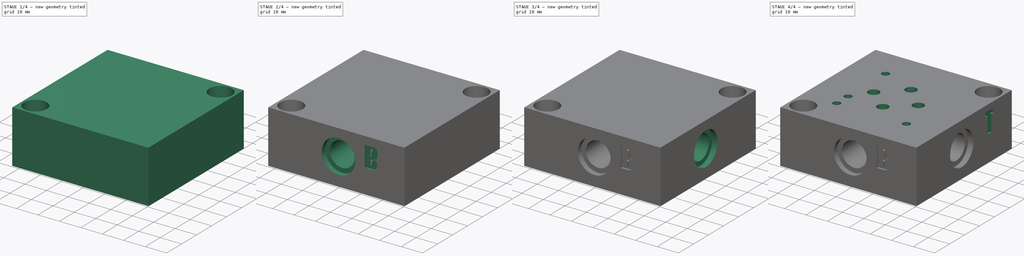
[diagram: build sequence overview — one tinted view per stage of 4, left to right]
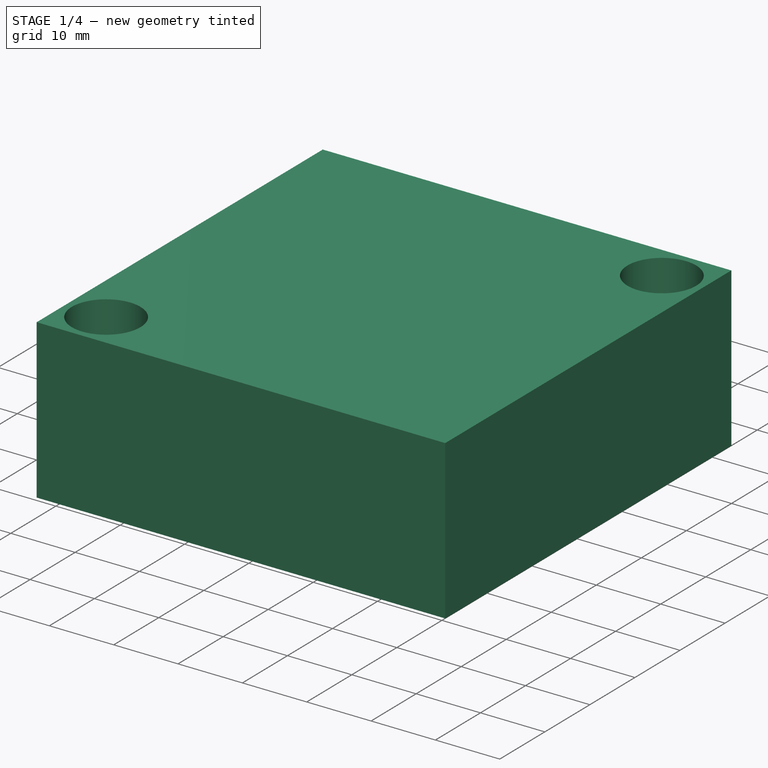
[diagram: stage 1 of 4 — iso view after this stage's code; geometry added in this stage tinted green]
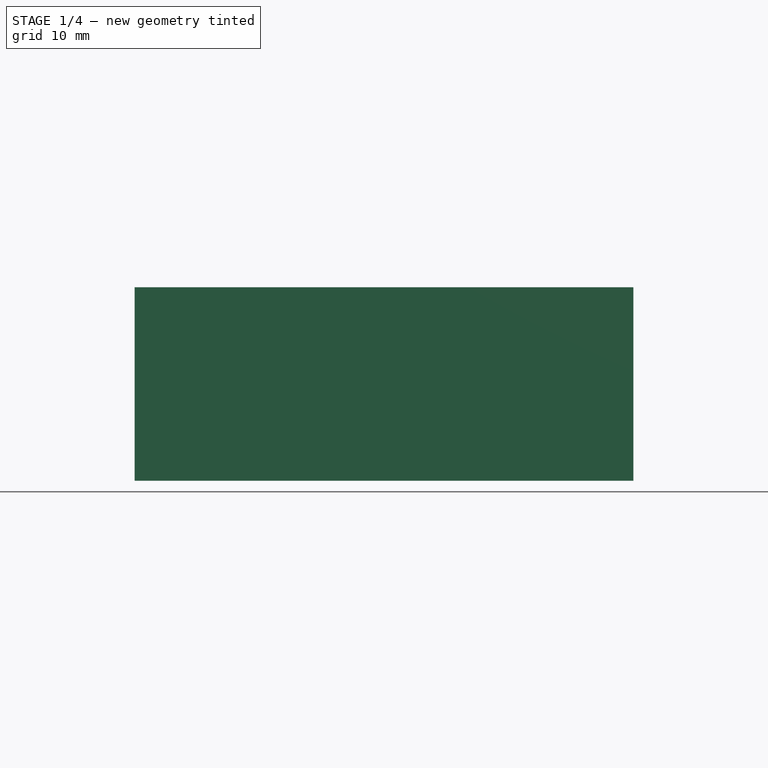
[diagram: stage 1 of 4 — front view after this stage's code; geometry added in this stage tinted green]
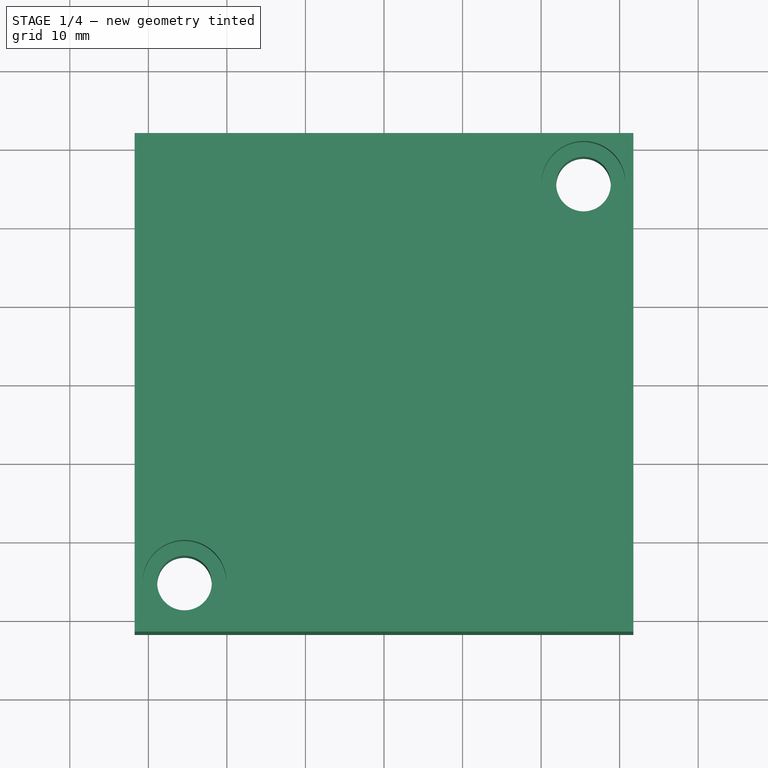
[diagram: stage 1 of 4 — top view after this stage's code; geometry added in this stage tinted green]
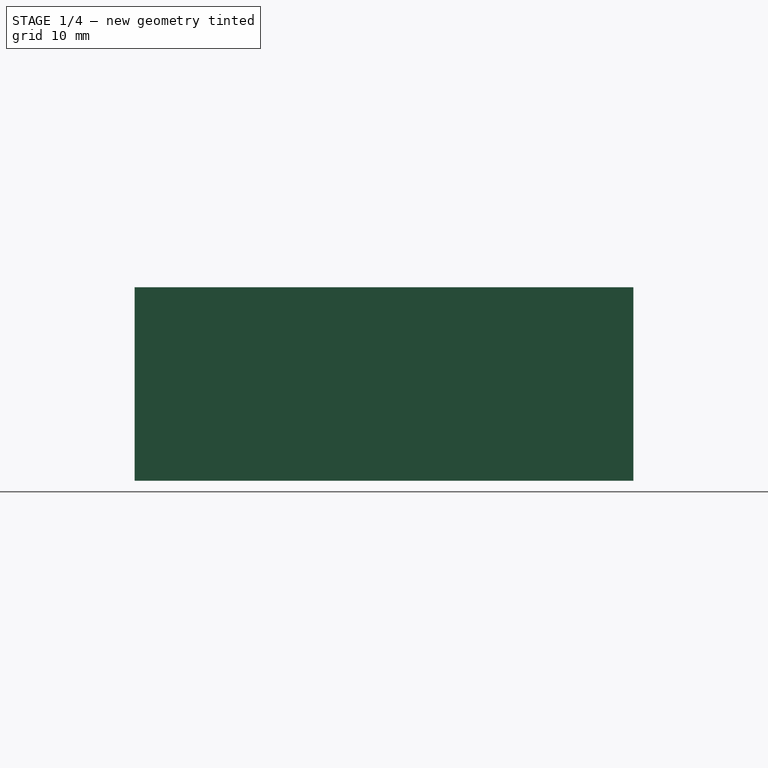
[diagram: stage 1 of 4 — right view after this stage's code; geometry added in this stage tinted green]
FCSTD DOCUMENT  (FreeCAD 0.18R16117 (Git))
Label: D03 Subplate Surplus Center
License: CreativeCommons Attribution-ShareAlike
LicenseURL: http://creativecommons.org/licenses/by-sa/4.0/
objects: Sketcher::SketchObject×10, PartDesign::Hole×5, PartDesign::Pocket×4, PartDesign::Mirrored×2, PartDesign::Pad×1, PartDesign::Body×1
note: 33 computed .brp shape members not serialized (recipe doc carries the construction recipe); baked Part::Feature solids carry a one-line shape summary decoded from their .brp

FEATURE [Sketcher::SketchObject] Sketch
  MapMode = 5
  Support = -> [XY_Plane]
  sketch-geometry (5):
    g0: LineSegment StartX=31.75 StartY=31.75 StartZ=0 EndX=-31.75 EndY=31.75 EndZ=0
    g1: LineSegment StartX=-31.75 StartY=31.75 StartZ=0 EndX=-31.75 EndY=-31.75 EndZ=0
    g2: LineSegment StartX=-31.75 StartY=-31.75 StartZ=0 EndX=31.75 EndY=-31.75 EndZ=0
    g3: LineSegment StartX=31.75 StartY=-31.75 StartZ=0 EndX=31.75 EndY=31.75 EndZ=0
    g4: Circle [constr] CenterX=0 CenterY=0 CenterZ=0 NormalX=0 NormalY=0 NormalZ=1 AngleXU=0 Radius=44.9013
  constraints (14):
    c: Coincident(g0,g1)
    c: Coincident(g1,g2)
    c: Coincident(g2,g3)
    c: Coincident(g3,g0)
    c: Equal(g0,g1)
    c: Equal(g0,g2)
    c: Equal(g0,g3)
    c: PointOnObject(g0,g4)
    c: PointOnObject(g1,g4)
    c: PointOnObject(g2,g4)
    c: PointOnObject(g3,g4)
    c: Coincident(g4,g-1)
    c: DistanceY(g1,g1) = 63.5
    c: Horizontal(g0)
FEATURE [PartDesign::Pad] Pad
  Length = 24.638
  Length2 = 99.9998
  Profile = -> Sketch
  Type = 0
FEATURE [Sketcher::SketchObject] Sketch001
  MapMode = 5
  Placement = pos=(0,0,24.638) rot=(0,0,1;0rad)
  Support = -> [Pad]
  sketch-geometry (4):
    g0: GeomPoint X=25.4 Y=25.4 Z=0
    g1: GeomPoint X=-25.4 Y=-25.4 Z=0
    g2: Circle CenterX=-25.4 CenterY=-25.4 CenterZ=0 NormalX=0 NormalY=0 NormalZ=1 AngleXU=0 Radius=3.175
    g3: Circle CenterX=25.4 CenterY=25.4 CenterZ=0 NormalX=0 NormalY=0 NormalZ=1 AngleXU=0 Radius=3.175
  constraints (8):
    c: DistanceY(g1,g0) = 50.8
    c: DistanceX(g0) = 25.4
    c: DistanceX(g1) = -25.4
    c: DistanceY(g0) = 25.4
    c: Coincident(g2,g1)
    c: Coincident(g3,g0)
    c: Equal(g3,g2)
    c: Radius(g3) = 3.175
FEATURE [PartDesign::Hole] Hole  label="Mounting Screw C'Bore"
  BaseFeature = -> Pad
  Depth = 25
  DepthType = 1
  Diameter = 6.95
  DrillPoint = 1
  DrillPointAngle = 118
  HoleCutCountersinkAngle = 82
  HoleCutDepth = 8.89
  HoleCutDiameter = 10.668
  HoleCutType = 1
  ModelActualThread = false
  Profile = -> Sketch001
  Tapered = false
  TaperedAngle = 90
  ThreadAngle = 0
  ThreadClass = 1
  ThreadCutOffInner = 0
  ThreadCutOffOuter = 0
  ThreadDirection = 0
  ThreadFit = 0
  ThreadPitch = 0
  ThreadSize = 9
  ThreadType = 3
  Threaded = false
FEATURE [Sketcher::SketchObject] Sketch002
  ExternalGeometry = -> [Hole]
  MapMode = 5
  Placement = pos=(0,31.75,0) rot=(0,0.707107,0.707107;3.14159rad)
  Support = -> [Hole]
  sketch-geometry (1):
    g0: Circle CenterX=-1.016 CenterY=12.7 CenterZ=0 NormalX=0 NormalY=0 NormalZ=1 AngleXU=0 Radius=7.14375
  constraints (3):
    c: DistanceX(g0,g-3) = 32.766
    c: DistanceY(g0) = 12.7
    c: Diameter(g0) = 14.2875
FEATURE [PartDesign::Hole] Hole001  label="Port A"
  BaseFeature = -> Hole
  Depth = 25.0012
  DepthType = 0
  Diameter = 11.43
  DrillPoint = 1
  DrillPointAngle = 118
  HoleCutCountersinkAngle = 82
  HoleCutDepth = 2.5
  HoleCutDiameter = 15.6
  HoleCutType = 1
  ModelActualThread = false
  Profile = -> Sketch002
  Tapered = false
  TaperedAngle = 90
  ThreadAngle = 60
  ThreadClass = 0
  ThreadCutOffInner = 0.137482
  ThreadCutOffOuter = 0.274963
  ThreadDirection = 1
  ThreadFit = 0
  ThreadPitch = 1.27
  ThreadSize = 14
  ThreadType = 4
  Threaded = true
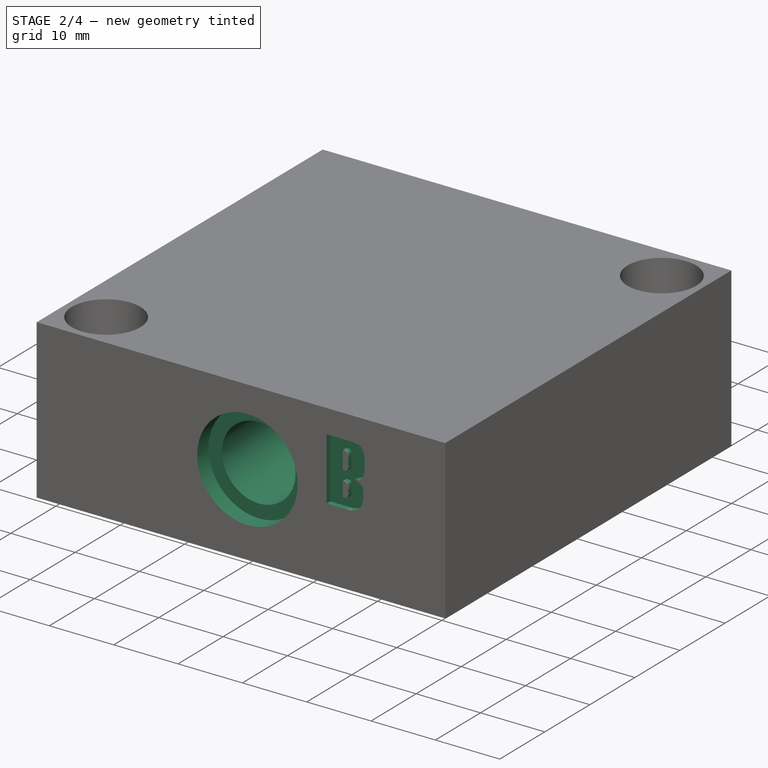
[diagram: stage 2 of 4 — iso view after this stage's code; geometry added in this stage tinted green]
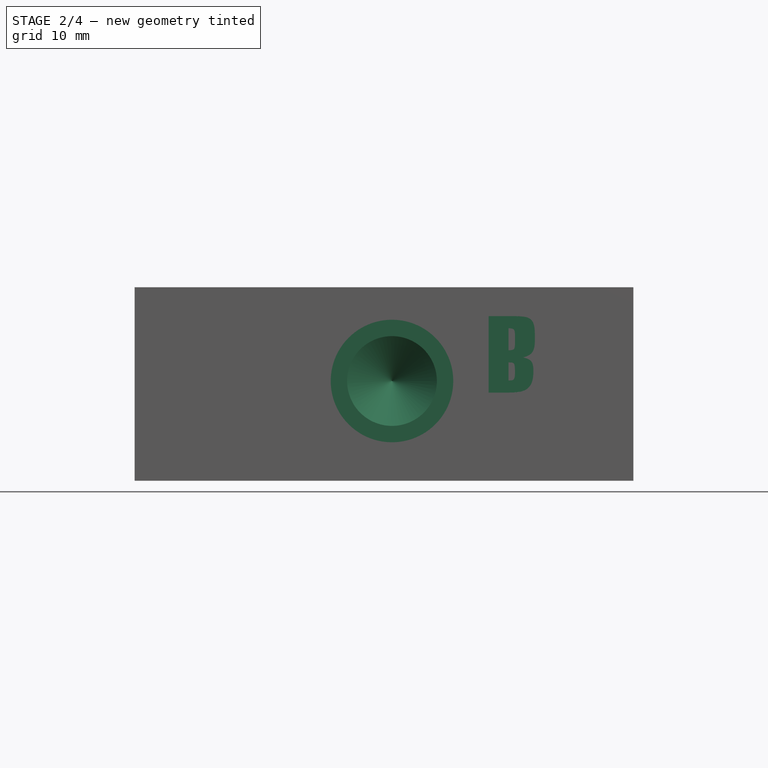
[diagram: stage 2 of 4 — front view after this stage's code; geometry added in this stage tinted green]
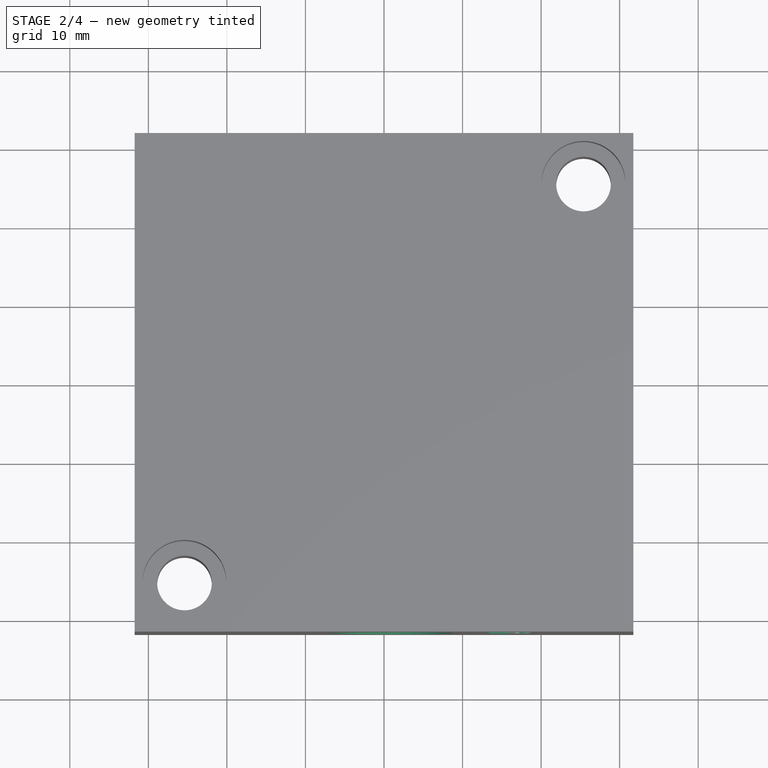
[diagram: stage 2 of 4 — top view after this stage's code; geometry added in this stage tinted green]
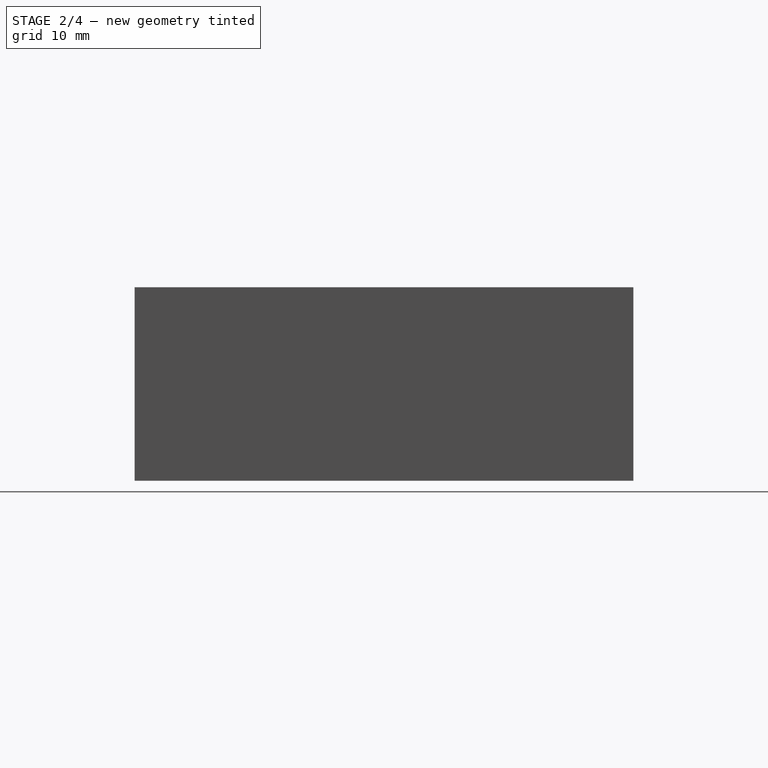
[diagram: stage 2 of 4 — right view after this stage's code; geometry added in this stage tinted green]
FEATURE [Sketcher::SketchObject] Sketch003
  MapMode = 5
  Placement = pos=(0,31.75,0) rot=(0,0.707107,0.707107;3.14159rad)
  Support = -> [Hole001]
  sketch-geometry (11):
    g0: LineSegment StartX=21.5374 StartY=21.7335 StartZ=0 EndX=22.9825 EndY=11.9978 EndZ=0
    g1: LineSegment StartX=17.8785 StartY=21.7335 StartZ=0 EndX=21.5374 EndY=21.7335 EndZ=0
    g2: LineSegment StartX=16.5934 StartY=11.9978 StartZ=0 EndX=17.8785 EndY=21.7335 EndZ=0
    g3: LineSegment StartX=19.2115 StartY=11.9978 StartZ=0 EndX=16.5934 EndY=11.9978 EndZ=0
    g4: LineSegment StartX=19.3636 StartY=13.7912 StartZ=0 EndX=19.2115 EndY=11.9978 EndZ=0
    g5: LineSegment StartX=20.2684 StartY=13.7912 StartZ=0 EndX=19.3636 EndY=13.7912 EndZ=0
    g6: LineSegment StartX=20.3965 StartY=11.9978 StartZ=0 EndX=20.2684 EndY=13.7912 EndZ=0
    g7: LineSegment StartX=22.9825 StartY=11.9978 StartZ=0 EndX=20.3965 EndY=11.9978 EndZ=0
    g8: BSplineCurve PolesCount=3 KnotsCount=2 Degree=2 IsPeriodic=0
    g9: LineSegment StartX=19.3316 StartY=15.5846 StartZ=0 EndX=20.1963 EndY=15.5846 EndZ=0
    g10: BSplineCurve PolesCount=3 KnotsCount=2 Degree=2 IsPeriodic=0
  constraints (16):
    c: Coincident(g0,g1)
    c: Horizontal(g1)
    c: Coincident(g1,g2)
    c: Coincident(g2,g3)
    c: Horizontal(g3)
    c: Coincident(g3,g4)
    c: Coincident(g4,g5)
    c: Horizontal(g5)
    c: Coincident(g5,g6)
    c: Coincident(g6,g7)
    c: Horizontal(g7)
    c: Coincident(g7,g0)
    c: Coincident(g8,g9)
    c: Horizontal(g9)
    c: Coincident(g9,g10)
    c: Coincident(g10,g8)
FEATURE [PartDesign::Pocket] Pocket  label="A"
  BaseFeature = -> Hole001
  Length = 0.79375
  Length2 = 99.9998
  Profile = -> Sketch003
  Type = 0
FEATURE [PartDesign::Mirrored] Mirrored  label="Port B"
  BaseFeature = -> Pocket
  MirrorPlane = -> XZ_Plane
  Originals = -> [Hole001]
FEATURE [Sketcher::SketchObject] Sketch004
  MapMode = 5
  Placement = pos=(-1.8e-15,-31.75,0) rot=(1,0,0;1.5708rad)
  Support = -> [Mirrored]
  sketch-geometry (27):
    g0: LineSegment StartX=13.3187 StartY=11.2257 StartZ=0 EndX=15.8407 EndY=11.2257 EndZ=0
    g1: LineSegment StartX=13.3187 StartY=20.9615 StartZ=0 EndX=13.3187 EndY=11.2257 EndZ=0
    g2: LineSegment StartX=16.2451 StartY=20.9615 StartZ=0 EndX=13.3187 EndY=20.9615 EndZ=0
    g3: BSplineCurve PolesCount=3 KnotsCount=2 Degree=2 IsPeriodic=0
    g4: BSplineCurve PolesCount=3 KnotsCount=2 Degree=2 IsPeriodic=0
    g5: BSplineCurve PolesCount=3 KnotsCount=2 Degree=2 IsPeriodic=0
    g6: LineSegment StartX=19.2034 StartY=17.7749 StartZ=0 EndX=19.2034 EndY=18.6797 EndZ=0
    g7: BSplineCurve PolesCount=3 KnotsCount=2 Degree=2 IsPeriodic=0
    g8: BSplineCurve PolesCount=3 KnotsCount=2 Degree=2 IsPeriodic=0
    g9: BSplineCurve PolesCount=3 KnotsCount=2 Degree=2 IsPeriodic=0
    g10: BSplineCurve PolesCount=3 KnotsCount=2 Degree=2 IsPeriodic=0
    g11: BSplineCurve PolesCount=3 KnotsCount=2 Degree=2 IsPeriodic=0
    g12: BSplineCurve PolesCount=3 KnotsCount=2 Degree=2 IsPeriodic=0
    g13: BSplineCurve PolesCount=3 KnotsCount=2 Degree=2 IsPeriodic=0
    g14: LineSegment StartX=15.8488 StartY=16.606 StartZ=0 EndX=15.8488 EndY=19.4243 EndZ=0
    g15: BSplineCurve PolesCount=3 KnotsCount=2 Degree=2 IsPeriodic=0
    g16: BSplineCurve PolesCount=3 KnotsCount=2 Degree=2 IsPeriodic=0
    g17: LineSegment StartX=16.6774 StartY=18.4835 StartZ=0 EndX=16.6774 EndY=17.5468 EndZ=0
    g18: BSplineCurve PolesCount=3 KnotsCount=2 Degree=2 IsPeriodic=0
    g19: BSplineCurve PolesCount=3 KnotsCount=2 Degree=2 IsPeriodic=0
    g20: LineSegment StartX=15.8488 StartY=12.7629 StartZ=0 EndX=15.8488 EndY=15.0688 EndZ=0
    g21: BSplineCurve PolesCount=3 KnotsCount=2 Degree=2 IsPeriodic=0
    g22: BSplineCurve PolesCount=3 KnotsCount=2 Degree=2 IsPeriodic=0
    g23: BSplineCurve PolesCount=3 KnotsCount=2 Degree=2 IsPeriodic=0
    g24: BSplineCurve PolesCount=3 KnotsCount=2 Degree=2 IsPeriodic=0
    g25: BSplineCurve PolesCount=3 KnotsCount=2 Degree=2 IsPeriodic=0
    g26: BSplineCurve PolesCount=3 KnotsCount=2 Degree=2 IsPeriodic=0
  constraints (34):
    c: Horizontal(g0)
    c: Coincident(g0,g1)
    c: Vertical(g1)
    c: Coincident(g1,g2)
    c: Horizontal(g2)
    c: Coincident(g2,g3)
    c: Coincident(g3,g4)
    c: Coincident(g4,g5)
    c: Coincident(g5,g6)
    c: Vertical(g6)
    c: Coincident(g6,g7)
    c: Coincident(g7,g8)
    c: Coincident(g8,g9)
    c: Coincident(g9,g10)
    c: Coincident(g10,g11)
    c: Coincident(g11,g12)
    c: Coincident(g12,g13)
    c: Coincident(g13,g0)
    c: Vertical(g14)
    c: Coincident(g14,g15)
    c: Coincident(g15,g16)
    c: Coincident(g16,g17)
    c: Vertical(g17)
    c: Coincident(g17,g18)
    c: Coincident(g18,g19)
    c: Coincident(g19,g14)
    c: Vertical(g20)
    c: Coincident(g20,g21)
    c: Coincident(g21,g22)
    c: Coincident(g22,g23)
    c: Coincident(g23,g24)
    c: Coincident(g24,g25)
    c: Coincident(g25,g26)
    c: Coincident(g26,g20)
FEATURE [PartDesign::Pocket] Pocket001  label="B"
  BaseFeature = -> Mirrored
  Length = 0.79375
  Length2 = 99.9998
  Profile = -> Sketch004
  Type = 0
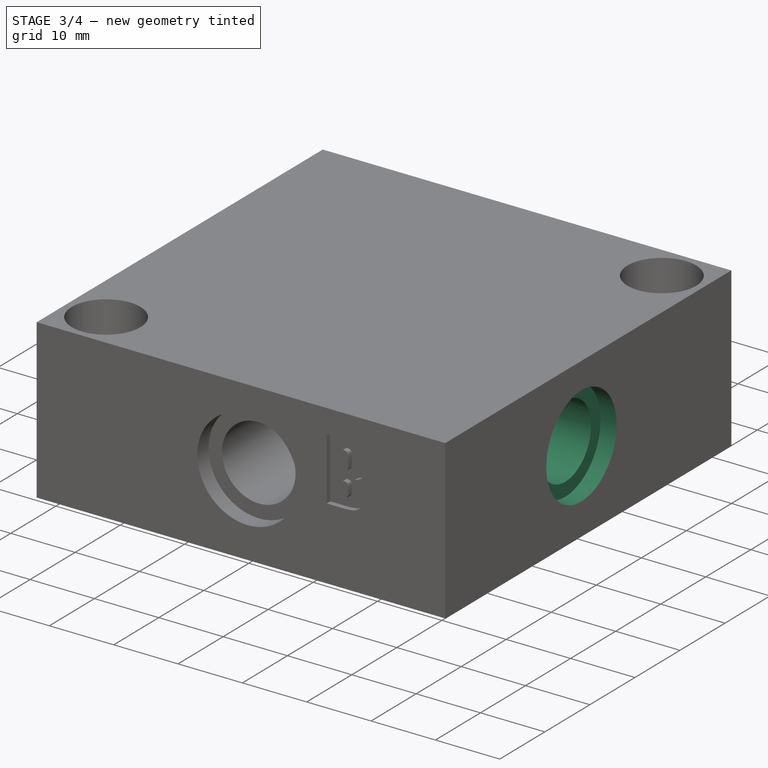
[diagram: stage 3 of 4 — iso view after this stage's code; geometry added in this stage tinted green]
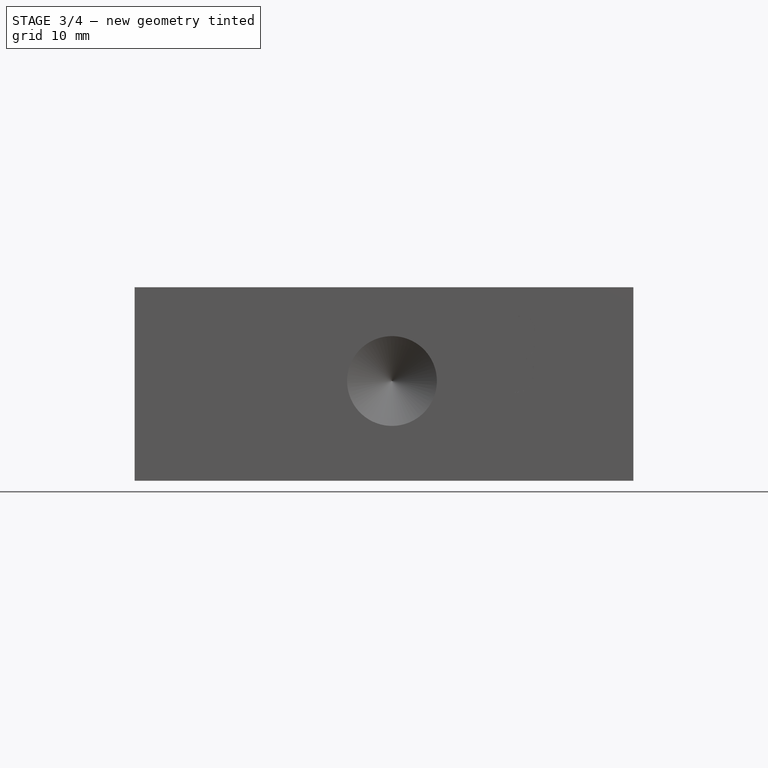
[diagram: stage 3 of 4 — front view after this stage's code; geometry added in this stage tinted green]
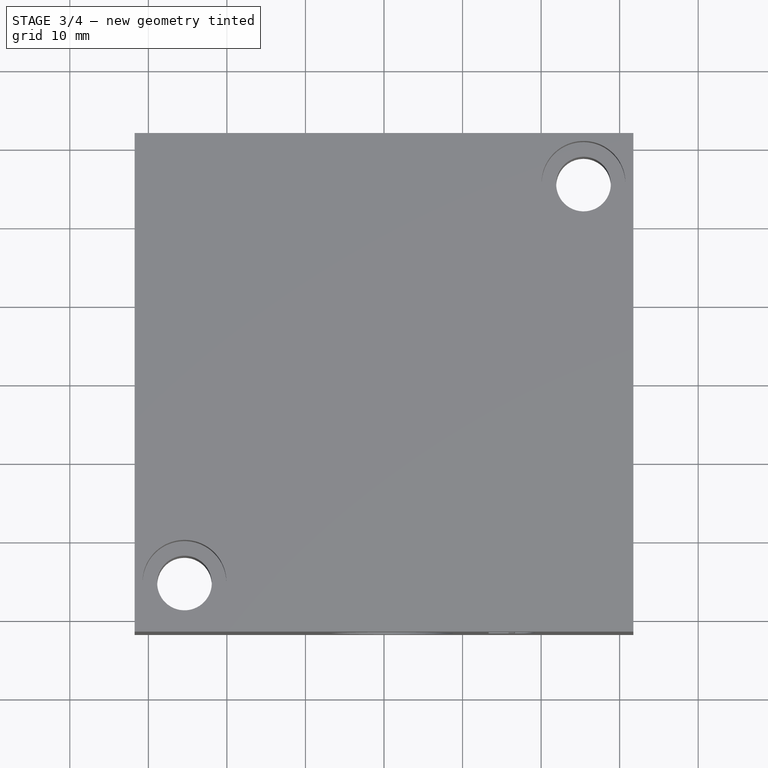
[diagram: stage 3 of 4 — top view after this stage's code; geometry added in this stage tinted green]
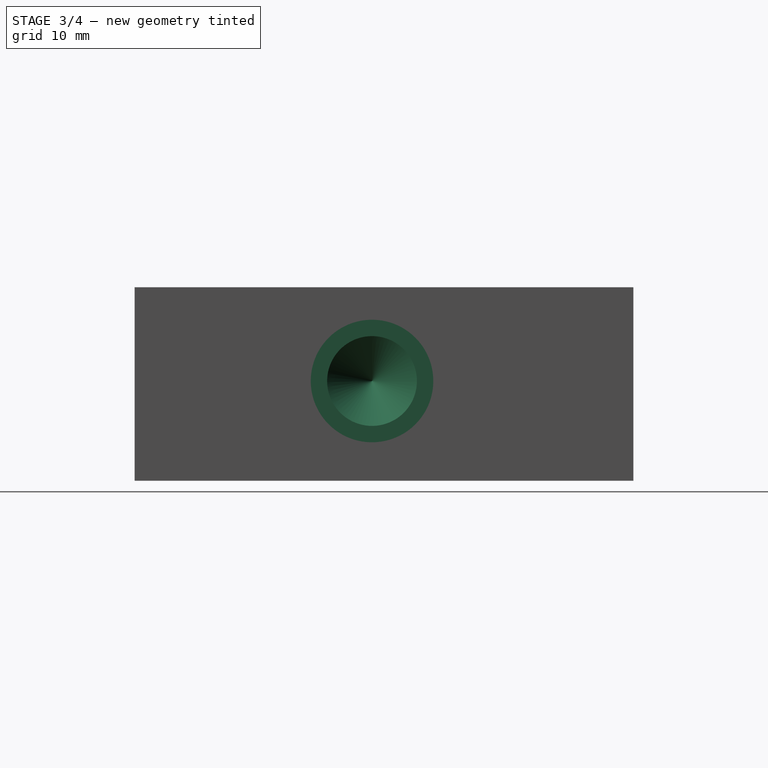
[diagram: stage 3 of 4 — right view after this stage's code; geometry added in this stage tinted green]
FEATURE [Sketcher::SketchObject] Sketch005
  ExternalGeometry = -> [Pocket001]
  MapMode = 5
  Placement = pos=(-31.75,1.8e-15,0) rot=(-0.57735,0.57735,0.57735;4.18879rad)
  Support = -> [Pocket001]
  sketch-geometry (1):
    g0: Circle CenterX=1.524 CenterY=12.7 CenterZ=0 NormalX=0 NormalY=0 NormalZ=1 AngleXU=0 Radius=7.14375
  constraints (3):
    c: DistanceX(g-3,g0) = 33.274
    c: DistanceY(g-1,g0) = 12.7
    c: Diameter(g0) = 14.2875
FEATURE [PartDesign::Hole] Hole002  label="Port P"
  BaseFeature = -> Pocket001
  Depth = 25.0012
  DepthType = 0
  Diameter = 11.43
  DrillPoint = 1
  DrillPointAngle = 118
  HoleCutCountersinkAngle = 82
  HoleCutDepth = 2.5
  HoleCutDiameter = 15.6
  HoleCutType = 1
  ModelActualThread = false
  Profile = -> Sketch005
  Tapered = false
  TaperedAngle = 90
  ThreadAngle = 60
  ThreadClass = 0
  ThreadCutOffInner = 0.137482
  ThreadCutOffOuter = 0.274963
  ThreadDirection = 1
  ThreadFit = 0
  ThreadPitch = 1.27
  ThreadSize = 14
  ThreadType = 4
  Threaded = true
FEATURE [PartDesign::Mirrored] Mirrored001  label="Port T"
  BaseFeature = -> Hole002
  MirrorPlane = -> YZ_Plane
  Originals = -> [Hole002]
FEATURE [Sketcher::SketchObject] Sketch006
  MapMode = 5
  Placement = pos=(-31.75,1.8e-15,0) rot=(-0.57735,0.57735,0.57735;4.18879rad)
  Support = -> [Mirrored001]
  sketch-geometry (20):
    g0: LineSegment StartX=-22.342 StartY=19.715 StartZ=0 EndX=-19.796 EndY=19.715 EndZ=0
    g1: LineSegment StartX=-22.342 StartY=9.9792 StartZ=0 EndX=-22.342 EndY=19.715 EndZ=0
    g2: LineSegment StartX=-19.812 StartY=9.9792 StartZ=0 EndX=-22.342 EndY=9.9792 EndZ=0
    g3: LineSegment StartX=-19.812 StartY=14.0785 StartZ=0 EndX=-19.812 EndY=9.9792 EndZ=0
    g4: LineSegment StartX=-19.1315 StartY=14.0785 StartZ=0 EndX=-19.812 EndY=14.0785 EndZ=0
    g5: BSplineCurve PolesCount=3 KnotsCount=2 Degree=2 IsPeriodic=0
    g6: BSplineCurve PolesCount=3 KnotsCount=2 Degree=2 IsPeriodic=0
    g7: BSplineCurve PolesCount=3 KnotsCount=2 Degree=2 IsPeriodic=0
    g8: LineSegment StartX=-16.8937 StartY=17.0729 StartZ=0 EndX=-16.8937 EndY=16.2522 EndZ=0
    g9: BSplineCurve PolesCount=3 KnotsCount=2 Degree=2 IsPeriodic=0
    g10: BSplineCurve PolesCount=3 KnotsCount=2 Degree=2 IsPeriodic=0
    g11: BSplineCurve PolesCount=3 KnotsCount=2 Degree=2 IsPeriodic=0
    g12: BSplineCurve PolesCount=3 KnotsCount=2 Degree=2 IsPeriodic=0
    g13: LineSegment StartX=-19.812 StartY=18.1777 StartZ=0 EndX=-19.812 EndY=15.6237 EndZ=0
    g14: BSplineCurve PolesCount=3 KnotsCount=2 Degree=2 IsPeriodic=0
    g15: BSplineCurve PolesCount=3 KnotsCount=2 Degree=2 IsPeriodic=0
    g16: LineSegment StartX=-19.0074 StartY=16.5284 StartZ=0 EndX=-19.0074 EndY=17.3531 EndZ=0
    g17: BSplineCurve PolesCount=3 KnotsCount=2 Degree=2 IsPeriodic=0
    g18: BSplineCurve PolesCount=3 KnotsCount=2 Degree=2 IsPeriodic=0
    g19: BSplineCurve PolesCount=3 KnotsCount=2 Degree=2 IsPeriodic=0
  constraints (28):
    c: Horizontal(g0)
    c: Coincident(g0,g1)
    c: Vertical(g1)
    c: Coincident(g1,g2)
    c: Horizontal(g2)
    c: Coincident(g2,g3)
    c: Vertical(g3)
    c: Coincident(g3,g4)
    c: Horizontal(g4)
    c: Coincident(g4,g5)
    c: Coincident(g5,g6)
    c: Coincident(g6,g7)
    c: Coincident(g7,g8)
    c: Vertical(g8)
    c: Coincident(g8,g9)
    c: Coincident(g9,g10)
    c: Coincident(g10,g11)
    c: Coincident(g11,g12)
    c: Coincident(g12,g0)
    c: Vertical(g13)
    c: Coincident(g13,g14)
    c: Coincident(g14,g15)
    c: Coincident(g15,g16)
    c: Vertical(g16)
    c: Coincident(g16,g17)
    c: Coincident(g17,g18)
    c: Coincident(g18,g19)
    c: Coincident(g19,g13)
FEATURE [Sketcher::SketchObject] Sketch008
  MapMode = 5
  Placement = pos=(31.75,-3.6e-15,0) rot=(0.57735,0.57735,0.57735;2.0944rad)
  Support = -> [Mirrored001]
  sketch-geometry (8):
    g0: LineSegment StartX=19.812 StartY=21.8616 StartZ=0 EndX=19.812 EndY=19.812 EndZ=0
    g1: LineSegment StartX=14.2876 StartY=21.8616 StartZ=0 EndX=19.812 EndY=21.8616 EndZ=0
    g2: LineSegment StartX=14.2876 StartY=19.812 StartZ=0 EndX=14.2876 EndY=21.8616 EndZ=0
    g3: LineSegment StartX=15.7848 StartY=19.812 StartZ=0 EndX=14.2876 EndY=19.812 EndZ=0
    g4: LineSegment StartX=15.7848 StartY=12.1259 StartZ=0 EndX=15.7848 EndY=19.812 EndZ=0
    g5: LineSegment StartX=18.3108 StartY=12.1259 StartZ=0 EndX=15.7848 EndY=12.1259 EndZ=0
    g6: LineSegment StartX=18.3108 StartY=19.812 StartZ=0 EndX=18.3108 EndY=12.1259 EndZ=0
    g7: LineSegment StartX=19.812 StartY=19.812 StartZ=0 EndX=18.3108 EndY=19.812 EndZ=0
  constraints (16):
    c: Vertical(g0)
    c: Coincident(g0,g1)
    c: Horizontal(g1)
    c: Coincident(g1,g2)
    c: Vertical(g2)
    c: Coincident(g2,g3)
    c: Horizontal(g3)
    c: Coincident(g3,g4)
    c: Vertical(g4)
    c: Coincident(g4,g5)
    c: Horizontal(g5)
    c: Coincident(g5,g6)
    c: Vertical(g6)
    c: Coincident(g6,g7)
    c: Horizontal(g7)
    c: Coincident(g7,g0)
FEATURE [PartDesign::Pocket] Pocket002  label="P"
  BaseFeature = -> Mirrored001
  Length = 0.79375
  Length2 = 99.9998
  Profile = -> Sketch006
  Type = 0
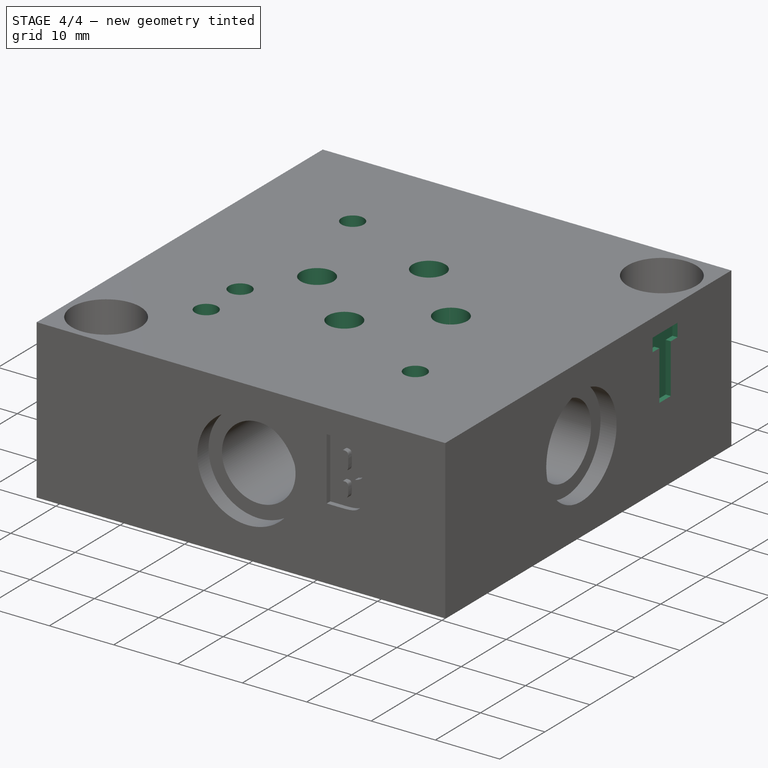
[diagram: stage 4 of 4 — iso view after this stage's code; geometry added in this stage tinted green]
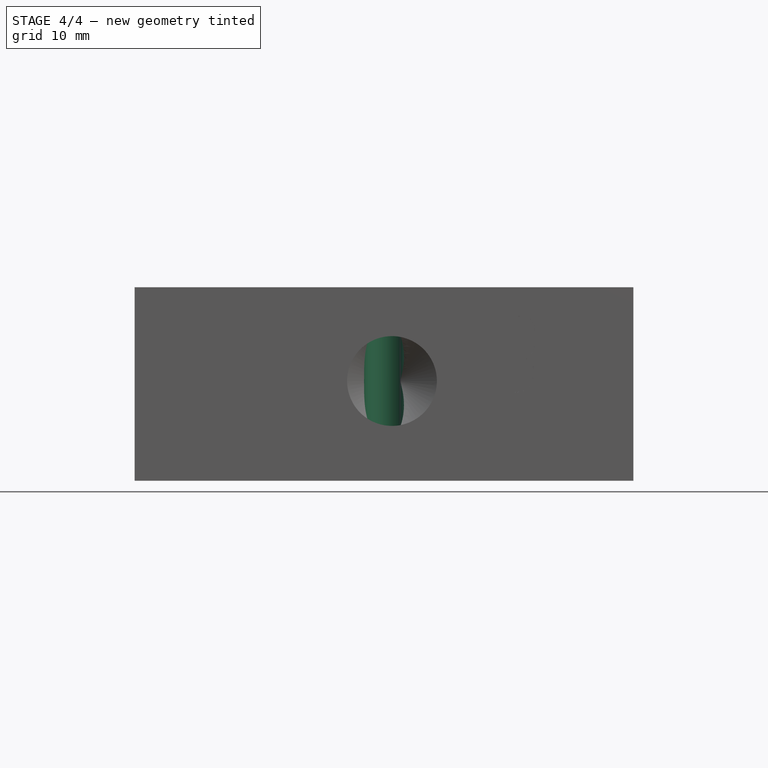
[diagram: stage 4 of 4 — front view after this stage's code; geometry added in this stage tinted green]
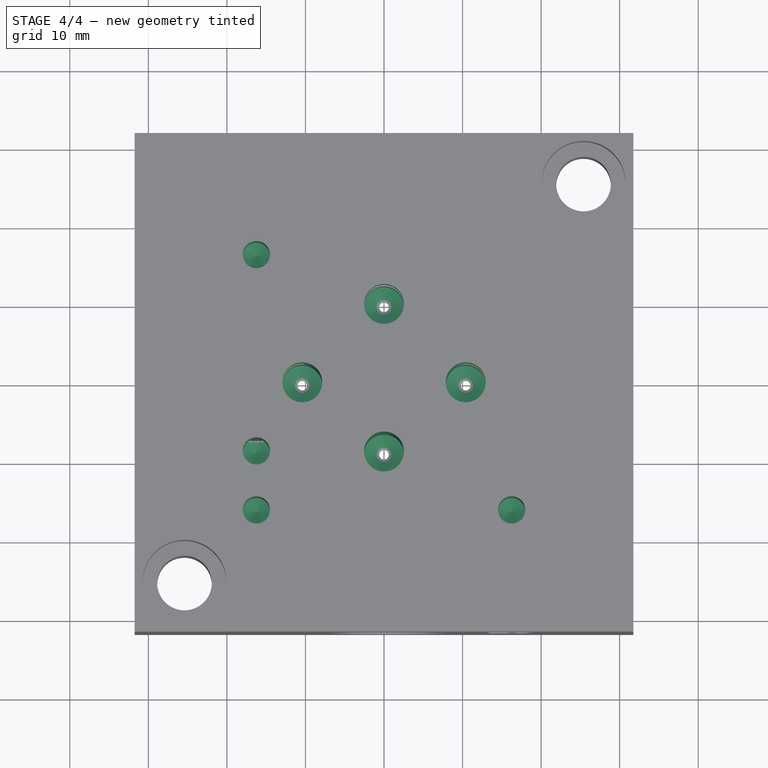
[diagram: stage 4 of 4 — top view after this stage's code; geometry added in this stage tinted green]
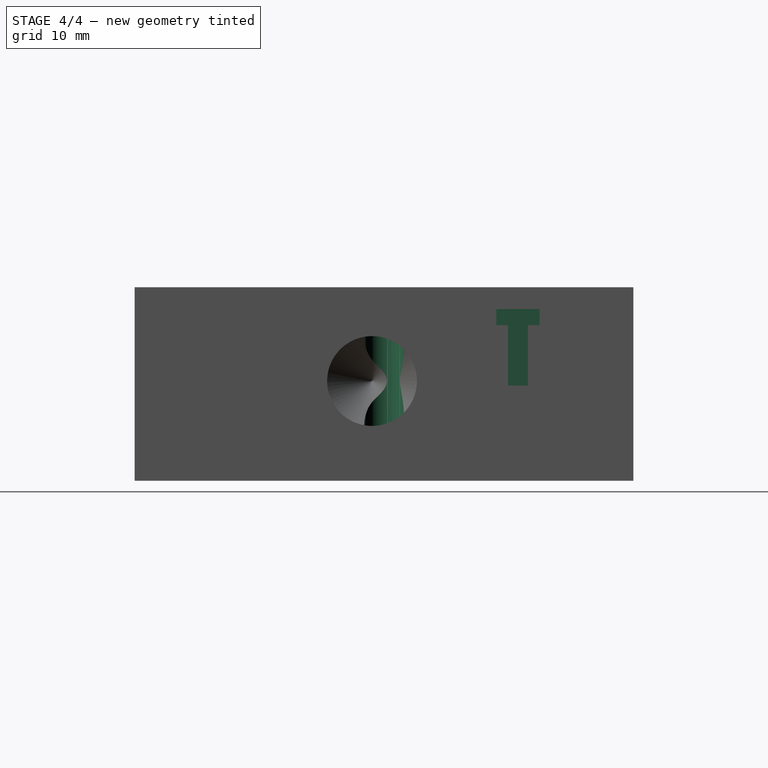
[diagram: stage 4 of 4 — right view after this stage's code; geometry added in this stage tinted green]
FEATURE [PartDesign::Pocket] Pocket003  label="T"
  BaseFeature = -> Pocket002
  Length = 0.79375
  Length2 = 99.9998
  Profile = -> Sketch008
  Type = 0
FEATURE [Sketcher::SketchObject] Sketch009
  MapMode = 5
  Placement = pos=(0,0,24.638) rot=(0,0,1;0rad)
  Support = -> [Pocket003]
  sketch-geometry (12):
    g0: LineSegment [constr] StartX=-10.3988 StartY=4.65343 StartZ=0 EndX=-10.3988 EndY=-4.65343 EndZ=0
    g1: LineSegment [constr] StartX=0 StartY=-13.4545 StartZ=0 EndX=0 EndY=-4.14767 EndZ=0
    g2: LineSegment [constr] StartX=10.4013 StartY=-4.65343 StartZ=0 EndX=10.4013 EndY=4.65343 EndZ=0
    g3: LineSegment [constr] StartX=0 StartY=5.3213 StartZ=0 EndX=0 EndY=14.6282 EndZ=0
    g4: GeomPoint X=-10.3988 Y=0 Z=0
    g5: GeomPoint X=0 Y=9.97473 Z=0
    g6: GeomPoint X=10.4013 Y=0 Z=0
    g7: GeomPoint X=0 Y=-8.8011 Z=0
    g8: Circle CenterX=-10.3988 CenterY=0 CenterZ=0 NormalX=0 NormalY=0 NormalZ=1 AngleXU=0 Radius=1.27
    g9: Circle CenterX=0 CenterY=9.97473 CenterZ=0 NormalX=0 NormalY=0 NormalZ=1 AngleXU=0 Radius=1.27
    g10: Circle CenterX=0 CenterY=-8.8011 CenterZ=0 NormalX=0 NormalY=0 NormalZ=1 AngleXU=0 Radius=1.27
    g11: Circle CenterX=10.4013 CenterY=0 CenterZ=0 NormalX=0 NormalY=0 NormalZ=1 AngleXU=0 Radius=1.27
  constraints (27):
    c: Symmetric(g2,g2,g6)
    c: Symmetric(g1,g1,g7)
    c: Symmetric(g0,g0,g4)
    c: Symmetric(g3,g3,g5)
    c: Horizontal(g6,g4)
    c: Vertical(g5,g7)
    c: DistanceX(g5,g6) = 10.4013
    c: DistanceX(g4,g5) = 10.3988
    c: DistanceY(g7,g3) = 14.1224
    c: DistanceY(g7,g6) = 8.8011
    c: Equal(g1,g0)
    c: Equal(g0,g2)
    c: Equal(g2,g3)
    c: Vertical(g3)
    c: PointOnObject(g7,g-2)
    c: Vertical(g0)
    c: Vertical(g1)
    c: Vertical(g2)
    c: PointOnObject(g6,g-1)
    c: Coincident(g8,g4)
    c: Coincident(g9,g5)
    c: Coincident(g10,g7)
    c: Coincident(g11,g6)
    c: Diameter(g9) = 2.54
    c: Equal(g9,g11)
    c: Equal(g9,g10)
    c: Equal(g9,g8)
FEATURE [Sketcher::SketchObject] Sketch010
  MapMode = 5
  Placement = pos=(0,0,24.638) rot=(0,0,1;0rad)
  Support = -> [Pocket003]
  sketch-geometry (4):
    g0: Circle CenterX=16.2496 CenterY=-16.2496 CenterZ=0 NormalX=0 NormalY=0 NormalZ=1 AngleXU=0 Radius=1.5875
    g1: Circle CenterX=-16.2496 CenterY=-8.73125 CenterZ=0 NormalX=0 NormalY=0 NormalZ=1 AngleXU=0 Radius=1.5875
    g2: Circle CenterX=-16.2496 CenterY=-16.2496 CenterZ=0 NormalX=0 NormalY=0 NormalZ=1 AngleXU=0 Radius=1.5875
    g3: Circle CenterX=-16.2496 CenterY=16.2496 CenterZ=0 NormalX=0 NormalY=0 NormalZ=1 AngleXU=0 Radius=1.5875
  constraints (10):
    c: Equal(g1,g2)
    c: Equal(g2,g0)
    c: Vertical(g2,g1)
    c: DistanceY(g1,g2) = -7.5184
    c: DistanceX(g0,g2) = -32.4993
    c: DistanceY(g2,g3) = 32.4993
    c: Equal(g3,g1)
    c: Diameter(g3) = 3.175
    c: Symmetric(g2,g3,g-1)
    c: Symmetric(g0,g2,g-2)
FEATURE [PartDesign::Hole] Hole003  label="Fluid Ports"
  BaseFeature = -> Pocket003
  Depth = 25.0012
  DepthType = 0
  Diameter = 5.08
  DrillPoint = 1
  DrillPointAngle = 118
  HoleCutCountersinkAngle = 90
  HoleCutDepth = 0
  HoleCutDiameter = 0
  HoleCutType = 0
  ModelActualThread = false
  Profile = -> Sketch009
  Tapered = false
  TaperedAngle = 90
  ThreadAngle = 0
  ThreadClass = 0
  ThreadCutOffInner = 0
  ThreadCutOffOuter = 0
  ThreadDirection = 0
  ThreadFit = 0
  ThreadPitch = 0
  ThreadSize = 0
  ThreadType = 0
  Threaded = false
FEATURE [PartDesign::Hole] Hole004  label="Mounting Holes 10-24"
  BaseFeature = -> Hole003
  Depth = 12.7
  DepthType = 0
  Diameter = 3.46
  DrillPoint = 1
  DrillPointAngle = 118
  HoleCutCountersinkAngle = 82
  HoleCutDepth = 0
  HoleCutDiameter = 0
  HoleCutType = 0
  ModelActualThread = false
  Profile = -> Sketch010
  Tapered = false
  TaperedAngle = 90
  ThreadAngle = 60
  ThreadClass = 0
  ThreadCutOffInner = 0.0763834
  ThreadCutOffOuter = 0.152767
  ThreadDirection = 1
  ThreadFit = 0
  ThreadPitch = 0.7056
  ThreadSize = 7
  ThreadType = 4
  Threaded = true
FEATURE [PartDesign::Body] Body
  Group = -> [Sketch,Pad,Sketch001,Hole,Sketch002,Hole001,Sketch003,Pocket,Mirrored,Sketch004,Pocket001,Sketch005,Hole002,Mirrored001,Sketch006,Sketch008,Pocket002,Pocket003,Sketch009,Sketch010,Hole003,Hole004]
  Origin = -> Origin
  Tip = -> Hole004
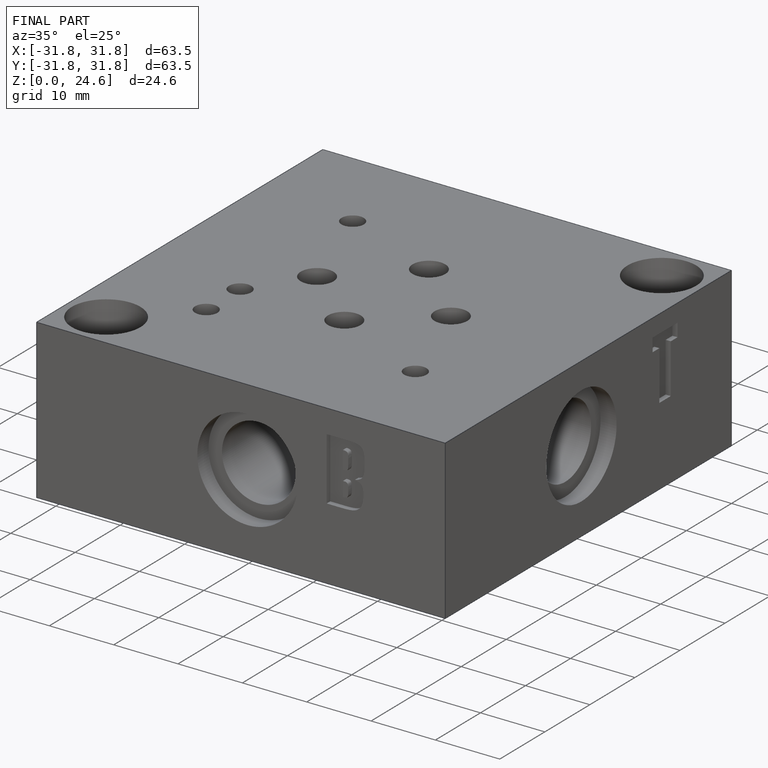
[diagram: finished part — iso view with bounding-box wireframe]
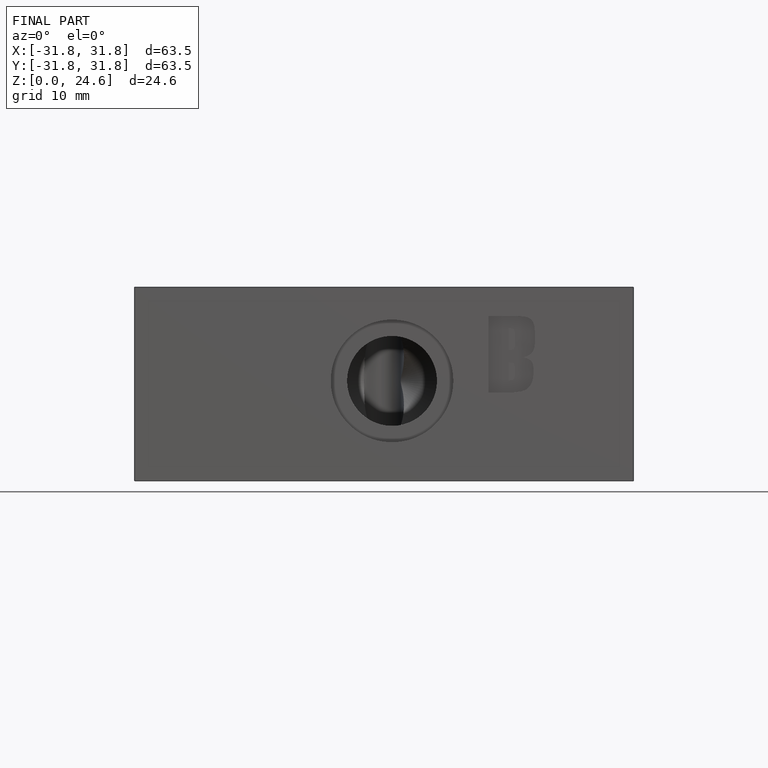
[diagram: finished part — front view with bounding-box wireframe]
